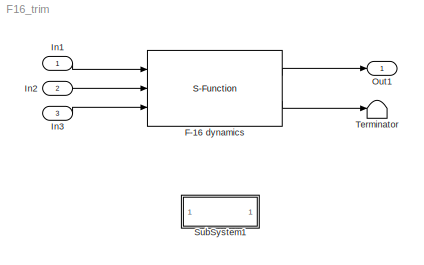
MODEL F16_trim
KIND model
BLOCK [S-Function] F-16 dynamics
  FunctionName = F16_dyn
  MaskDisplay = image(imread('aerodata/f16.jpg'))
  MaskIconFrame = on
  MaskIconOpaque = on
  MaskIconRotate = none
  MaskIconUnits = autoscale
  Parameters = [100 0 14.74*pi/180, cos(14.74*pi/360) 0 sin(14.74*pi/360)  0, 0 0 0, 0 0 -5000 20]
  Ports = [3, 2]
BLOCK [Inport] In1
  IconDisplay = Port number
  OutDataType = sfix(16)
  OutScaling = 2^0
BLOCK [Inport] In2
  IconDisplay = Port number
  OutDataType = sfix(16)
  OutScaling = 2^0
  Port = 2
BLOCK [Inport] In3
  IconDisplay = Port number
  OutDataType = sfix(16)
  OutScaling = 2^0
  Port = 3
BLOCK [Outport] Out1
  IconDisplay = Port number
  OutDataType = sfix(16)
  OutScaling = 2^0
BLOCK [SubSystem] SubSystem1
  MaskDisplay = disp('F16_dyn.c');
  MaskIconFrame = on
  MaskIconOpaque = on
  MaskIconRotate = none
  MaskIconUnits = autoscale
  MinAlgLoopOccurrences = off
  OpenFcn = edit(fullfile(cd,'F16_dyn.c'))
  Ports = []
  RTWSystemCode = Auto
BLOCK [Terminator] Terminator
LINE F-16 dynamics:1 -> Out1:1
LINE F-16 dynamics:2 -> Terminator:1
LINE In1:1 -> F-16 dynamics:1
LINE In2:1 -> F-16 dynamics:2
LINE In3:1 -> F-16 dynamics:3
